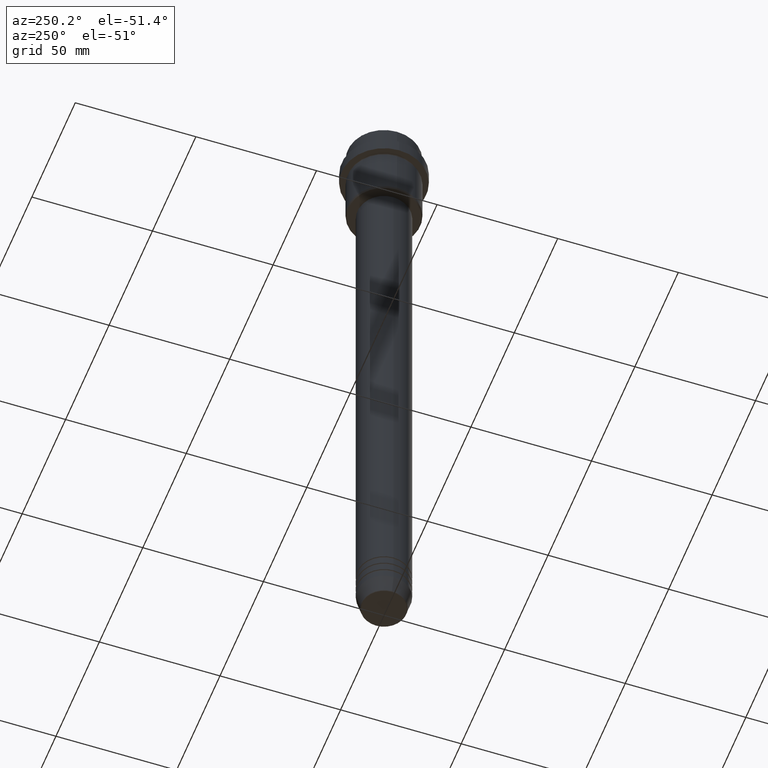
[diagram: clean part render]
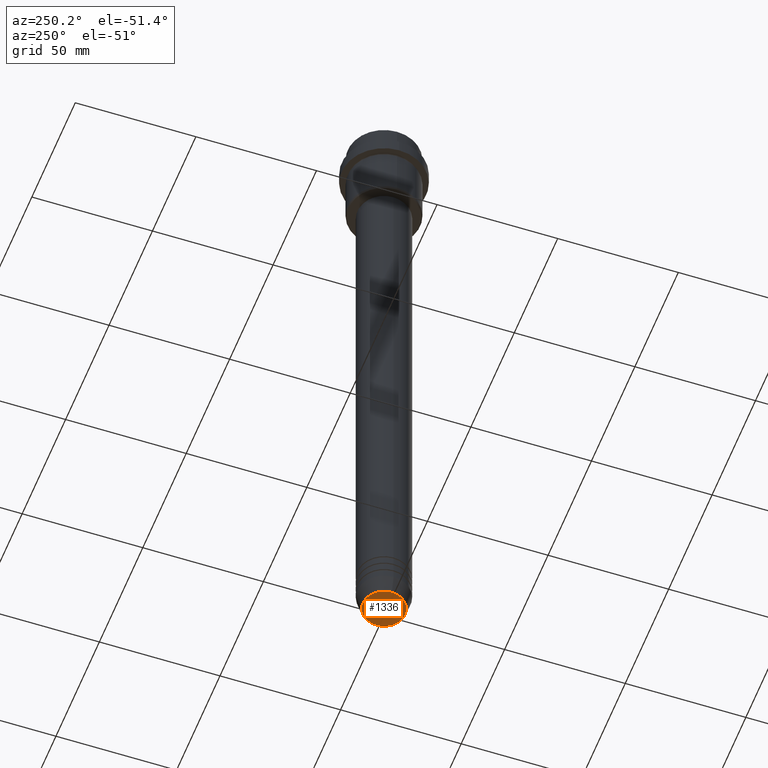
[diagram: same view with one face highlighted and labeled with its STEP entity id]
A machine part, auxiliary view. The second image highlights one B-rep face of the part: STEP entity #1336.
In plain terms, the highlighted planar face has unit normal (0, -0, 1).
Its self-contained STEP definition (entity closure, byte-faithful):
#106 = DIRECTION ( 'NONE',  ( 0.000000000000000000, -0.000000000000000000, 1.000000000000000000 ) ) ;
#118 = VERTEX_POINT ( 'NONE', #874 ) ;
#122 = EDGE_CURVE ( 'NONE', #118, #331, #889, .T. ) ;
#145 = CARTESIAN_POINT ( 'NONE',  ( 0.000000000000000000, 0.000000000000000000, -281.0000000000000000 ) ) ;
#200 = ORIENTED_EDGE ( 'NONE', *, *, #122, .T. ) ;
#265 = AXIS2_PLACEMENT_3D ( 'NONE', #969, #413, #323 ) ;
#323 = DIRECTION ( 'NONE',  ( 1.000000000000000000, 0.000000000000000000, 0.000000000000000000 ) ) ;
#331 = VERTEX_POINT ( 'NONE', #1379 ) ;
#413 = DIRECTION ( 'NONE',  ( 0.000000000000000000, 0.000000000000000000, -1.000000000000000000 ) ) ;
#638 = EDGE_CURVE ( 'NONE', #331, #118, #818, .T. ) ;
#673 = FACE_OUTER_BOUND ( 'NONE', #1124, .T. ) ;
#759 = ORIENTED_EDGE ( 'NONE', *, *, #638, .T. ) ;
#818 = CIRCLE ( 'NONE', #865, 8.740692158992656502 ) ;
#865 = AXIS2_PLACEMENT_3D ( 'NONE', #145, #1231, #1132 ) ;
#874 = CARTESIAN_POINT ( 'NONE',  ( 8.740692158992656502, 0.000000000000000000, -281.0000000000000000 ) ) ;
#889 = CIRCLE ( 'NONE', #265, 8.740692158992656502 ) ;
#969 = CARTESIAN_POINT ( 'NONE',  ( 0.000000000000000000, 0.000000000000000000, -281.0000000000000000 ) ) ;
#1020 = PLANE ( 'NONE',  #1030 ) ;
#1030 = AXIS2_PLACEMENT_3D ( 'NONE', #1123, #106, #1108 ) ;
#1108 = DIRECTION ( 'NONE',  ( 1.000000000000000000, 0.000000000000000000, 0.000000000000000000 ) ) ;
#1123 = CARTESIAN_POINT ( 'NONE',  ( 0.000000000000000000, 0.000000000000000000, -281.0000000000000000 ) ) ;
#1124 = EDGE_LOOP ( 'NONE', ( #200, #759 ) ) ;
#1132 = DIRECTION ( 'NONE',  ( 1.000000000000000000, 0.000000000000000000, 0.000000000000000000 ) ) ;
#1231 = DIRECTION ( 'NONE',  ( 0.000000000000000000, 0.000000000000000000, -1.000000000000000000 ) ) ;
#1336 = ADVANCED_FACE ( 'NONE', ( #673 ), #1020, .F. ) ;
#1379 = CARTESIAN_POINT ( 'NONE',  ( -8.740692158992656502, 1.099999016768739653E-15, -281.0000000000000000 ) ) ;